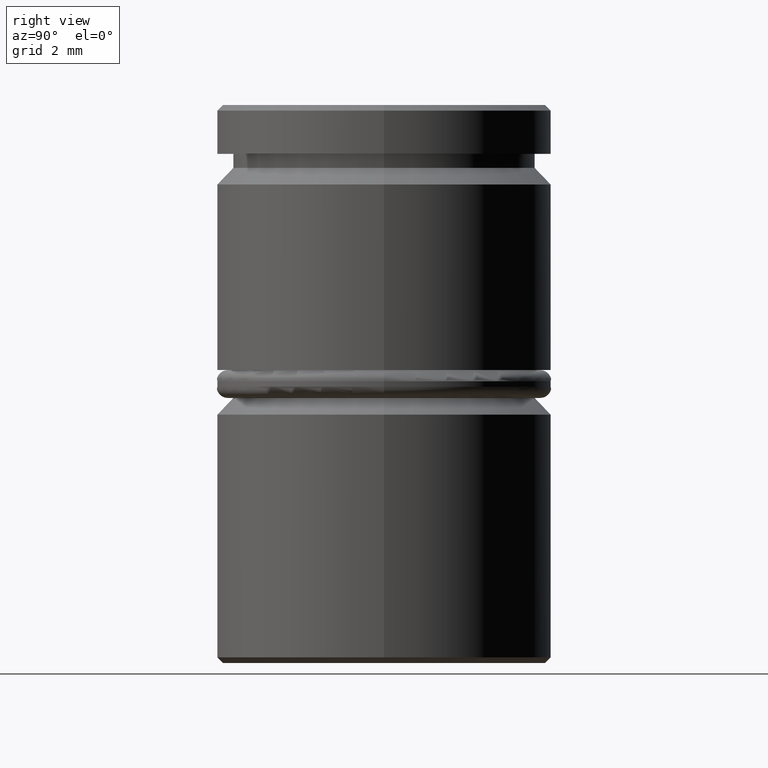
[diagram: clean part render]
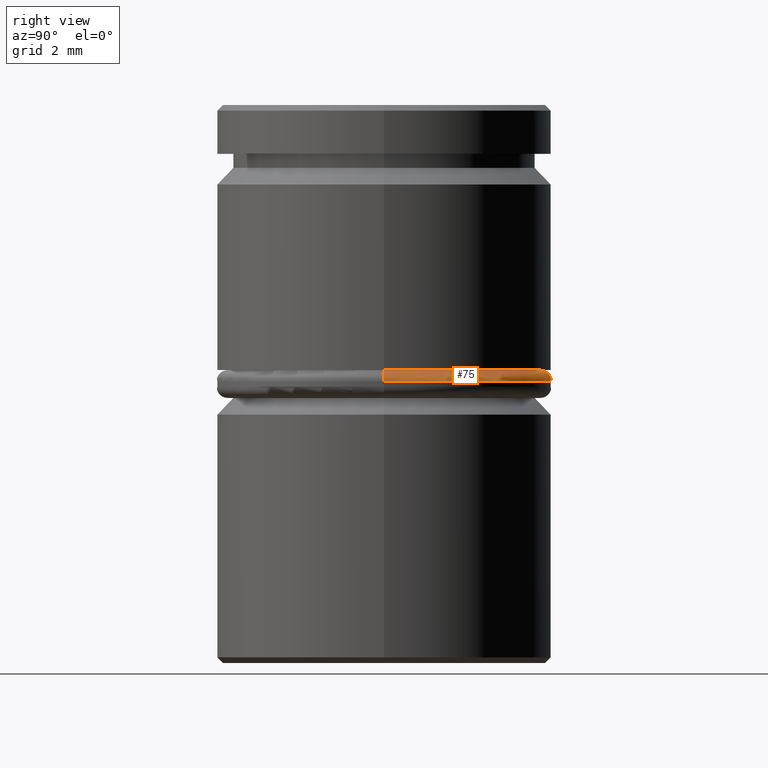
[diagram: same view with one face highlighted and labeled with its STEP entity id]
A machine part, right view. The second image highlights one B-rep face of the part: STEP entity #75.
In plain terms, the highlighted toroidal blend (fillet) surface has major radius 2.8 mm and minor (blend) radius 0.2 mm.
Its self-contained STEP definition (entity closure, byte-faithful):
#3 = FACE_OUTER_BOUND ( 'NONE', #292, .T. ) ;
#24 = EDGE_CURVE ( 'NONE', #45, #100, #49, .T. ) ;
#45 = VERTEX_POINT ( 'NONE', #151 ) ;
#49 = CIRCLE ( 'NONE', #724, 3.000000000000000444 ) ;
#73 = VERTEX_POINT ( 'NONE', #565 ) ;
#75 = ADVANCED_FACE ( 'NONE', ( #3 ), #703, .T. ) ;
#79 = ORIENTED_EDGE ( 'NONE', *, *, #1096, .F. ) ;
#100 = VERTEX_POINT ( 'NONE', #446 ) ;
#129 = DIRECTION ( 'NONE',  ( -0.000000000000000000, -1.000000000000000000, -0.000000000000000000 ) ) ;
#144 = CARTESIAN_POINT ( 'NONE',  ( 0.000000000000000000, 0.000000000000000000, -4.949999999999997513 ) ) ;
#151 = CARTESIAN_POINT ( 'NONE',  ( -3.000000000000000444, 3.673940397442060361E-16, -4.949999999999997513 ) ) ;
#187 = EDGE_CURVE ( 'NONE', #73, #45, #366, .T. ) ;
#194 = DIRECTION ( 'NONE',  ( 0.000000000000000000, 0.000000000000000000, -1.000000000000000000 ) ) ;
#256 = DIRECTION ( 'NONE',  ( -1.000000000000000000, 0.000000000000000000, 0.000000000000000000 ) ) ;
#292 = EDGE_LOOP ( 'NONE', ( #79, #1158, #981, #1055 ) ) ;
#299 = CIRCLE ( 'NONE', #989, 0.2000000000000000944 ) ;
#332 = CARTESIAN_POINT ( 'NONE',  ( 2.800000000000000266, 3.429011037612589276E-16, -4.949999999999997513 ) ) ;
#346 = DIRECTION ( 'NONE',  ( -1.000000000000000000, -1.224646799147353207E-16, 0.000000000000000000 ) ) ;
#366 = CIRCLE ( 'NONE', #1034, 0.1999999999999996503 ) ;
#446 = CARTESIAN_POINT ( 'NONE',  ( 3.000000000000000444, 0.000000000000000000, -4.949999999999997513 ) ) ;
#455 = AXIS2_PLACEMENT_3D ( 'NONE', #898, #783, #256 ) ;
#491 = CIRCLE ( 'NONE', #455, 2.800000000000000266 ) ;
#502 = DIRECTION ( 'NONE',  ( -1.000000000000000000, 0.000000000000000000, 0.000000000000000000 ) ) ;
#565 = CARTESIAN_POINT ( 'NONE',  ( -2.800000000000000266, 0.000000000000000000, -4.749999999999999112 ) ) ;
#631 = CARTESIAN_POINT ( 'NONE',  ( 0.000000000000000000, 0.000000000000000000, -4.949999999999997513 ) ) ;
#703 = TOROIDAL_SURFACE ( 'NONE', #1098, 2.800000000000000266, 0.2000000000000000111 ) ;
#724 = AXIS2_PLACEMENT_3D ( 'NONE', #144, #787, #502 ) ;
#783 = DIRECTION ( 'NONE',  ( -0.000000000000000000, -0.000000000000000000, 1.000000000000000000 ) ) ;
#787 = DIRECTION ( 'NONE',  ( 0.000000000000000000, 0.000000000000000000, -1.000000000000000000 ) ) ;
#860 = CARTESIAN_POINT ( 'NONE',  ( 2.800000000000000266, 3.551475717527324325E-16, -4.749999999999999112 ) ) ;
#898 = CARTESIAN_POINT ( 'NONE',  ( 0.000000000000000000, 0.000000000000000000, -4.749999999999999112 ) ) ;
#981 = ORIENTED_EDGE ( 'NONE', *, *, #24, .F. ) ;
#989 = AXIS2_PLACEMENT_3D ( 'NONE', #332, #1169, #346 ) ;
#1034 = AXIS2_PLACEMENT_3D ( 'NONE', #1142, #129, #1118 ) ;
#1055 = ORIENTED_EDGE ( 'NONE', *, *, #187, .F. ) ;
#1063 = VERTEX_POINT ( 'NONE', #860 ) ;
#1096 = EDGE_CURVE ( 'NONE', #1063, #73, #491, .T. ) ;
#1098 = AXIS2_PLACEMENT_3D ( 'NONE', #631, #194, #1108 ) ;
#1108 = DIRECTION ( 'NONE',  ( -1.000000000000000000, 0.000000000000000000, 0.000000000000000000 ) ) ;
#1112 = EDGE_CURVE ( 'NONE', #1063, #100, #299, .T. ) ;
#1118 = DIRECTION ( 'NONE',  ( 0.000000000000000000, 0.000000000000000000, -1.000000000000000000 ) ) ;
#1142 = CARTESIAN_POINT ( 'NONE',  ( -2.800000000000000266, 0.000000000000000000, -4.949999999999997513 ) ) ;
#1158 = ORIENTED_EDGE ( 'NONE', *, *, #1112, .T. ) ;
#1169 = DIRECTION ( 'NONE',  ( -1.224646799147353207E-16, 1.000000000000000000, 0.000000000000000000 ) ) ;